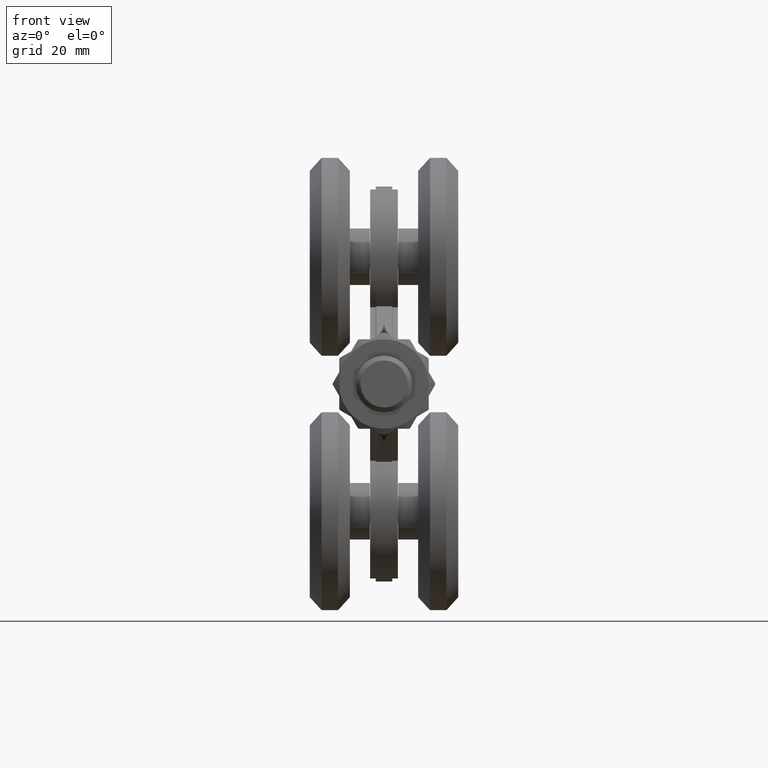
[diagram: clean part render]
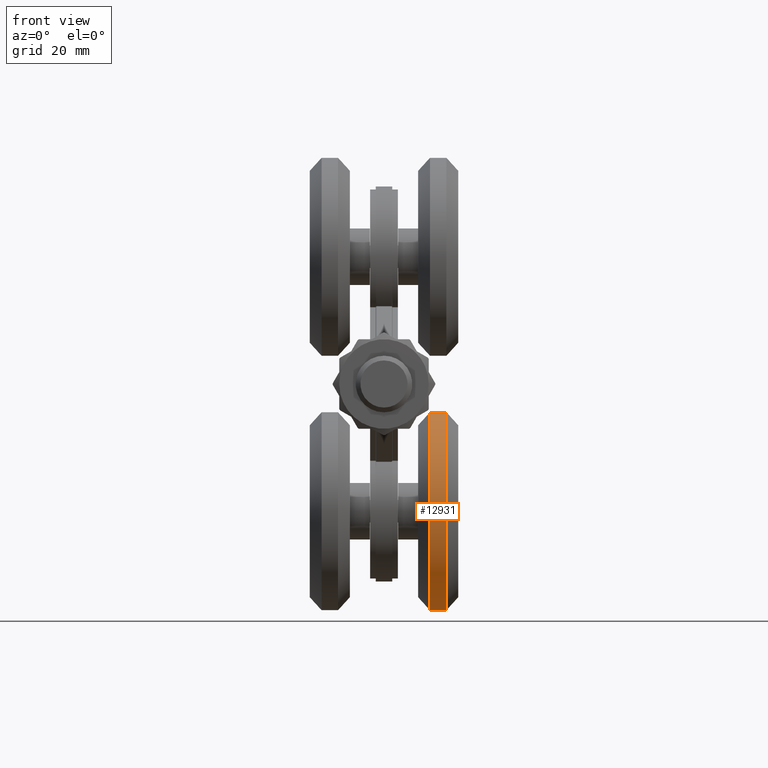
[diagram: same view with one face highlighted and labeled with its STEP entity id]
A machine part, front view. The second image highlights one B-rep face of the part: STEP entity #12931.
In plain terms, the highlighted cylindrical surface (bore or boss wall) has radius 21 mm, axis along (-1, 0, 0).
Its self-contained STEP definition (entity closure, byte-faithful):
#100 = CARTESIAN_POINT ( 'NONE',  ( 13.24999999999999289, 34.00000000000000000, -48.00000000000000000 ) ) ;
#325 = VERTEX_POINT ( 'NONE', #18165 ) ;
#486 = DIRECTION ( 'NONE',  ( 1.000000000000000000, 0.000000000000000000, -0.000000000000000000 ) ) ;
#740 = EDGE_LOOP ( 'NONE', ( #18098 ) ) ;
#936 = CARTESIAN_POINT ( 'NONE',  ( 2.999999999999999556, 34.00000000000000000, -27.00000000000000000 ) ) ;
#3546 = CARTESIAN_POINT ( 'NONE',  ( 13.24999999999999289, 34.00000000000000000, -27.00000000000000000 ) ) ;
#4505 = AXIS2_PLACEMENT_3D ( 'NONE', #13976, #17247, #15439 ) ;
#5804 = CIRCLE ( 'NONE', #11759, 21.00000000000000000 ) ;
#6026 = EDGE_CURVE ( 'NONE', #325, #325, #17261, .T. ) ;
#6376 = FACE_OUTER_BOUND ( 'NONE', #19380, .T. ) ;
#6532 = EDGE_CURVE ( 'NONE', #19101, #19101, #5804, .T. ) ;
#7616 = AXIS2_PLACEMENT_3D ( 'NONE', #936, #13014, #19073 ) ;
#11681 = ORIENTED_EDGE ( 'NONE', *, *, #6532, .F. ) ;
#11759 = AXIS2_PLACEMENT_3D ( 'NONE', #3546, #486, #14176 ) ;
#12931 = ADVANCED_FACE ( 'NONE', ( #13522, #6376 ), #18040, .T. ) ;
#13014 = DIRECTION ( 'NONE',  ( -1.000000000000000000, -0.000000000000000000, 0.000000000000000000 ) ) ;
#13522 = FACE_OUTER_BOUND ( 'NONE', #740, .T. ) ;
#13976 = CARTESIAN_POINT ( 'NONE',  ( 9.749999999999992895, 34.00000000000000000, -27.00000000000000000 ) ) ;
#14176 = DIRECTION ( 'NONE',  ( 0.000000000000000000, 0.000000000000000000, -1.000000000000000000 ) ) ;
#15439 = DIRECTION ( 'NONE',  ( 0.000000000000000000, 0.000000000000000000, -1.000000000000000000 ) ) ;
#17247 = DIRECTION ( 'NONE',  ( 1.000000000000000000, 0.000000000000000000, -0.000000000000000000 ) ) ;
#17261 = CIRCLE ( 'NONE', #4505, 21.00000000000000000 ) ;
#18040 = CYLINDRICAL_SURFACE ( 'NONE', #7616, 21.00000000000000000 ) ;
#18098 = ORIENTED_EDGE ( 'NONE', *, *, #6026, .T. ) ;
#18165 = CARTESIAN_POINT ( 'NONE',  ( 9.749999999999992895, 34.00000000000000000, -48.00000000000000000 ) ) ;
#19073 = DIRECTION ( 'NONE',  ( 0.000000000000000000, 0.000000000000000000, -1.000000000000000000 ) ) ;
#19101 = VERTEX_POINT ( 'NONE', #100 ) ;
#19380 = EDGE_LOOP ( 'NONE', ( #11681 ) ) ;